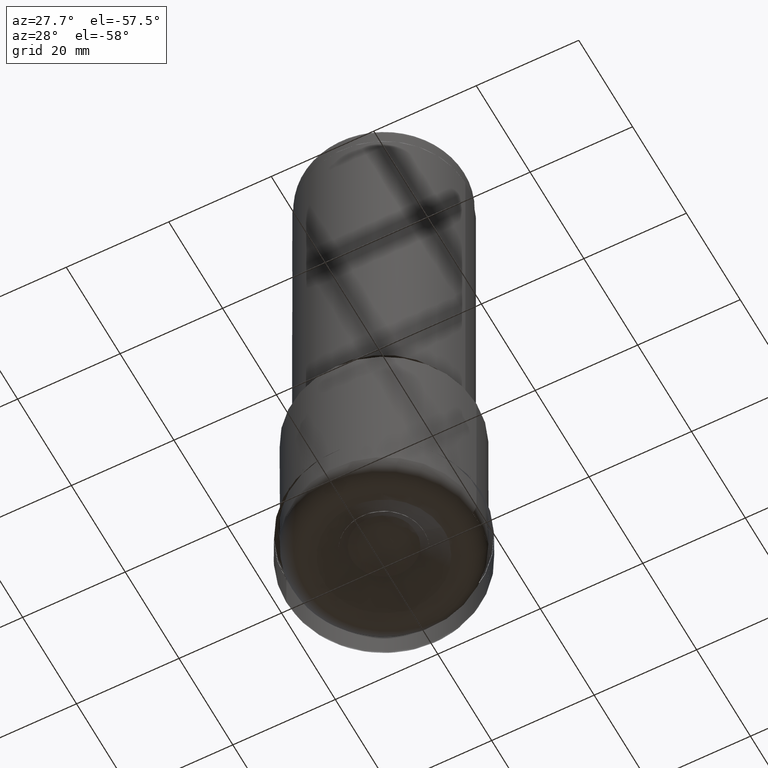
[diagram: clean part render]
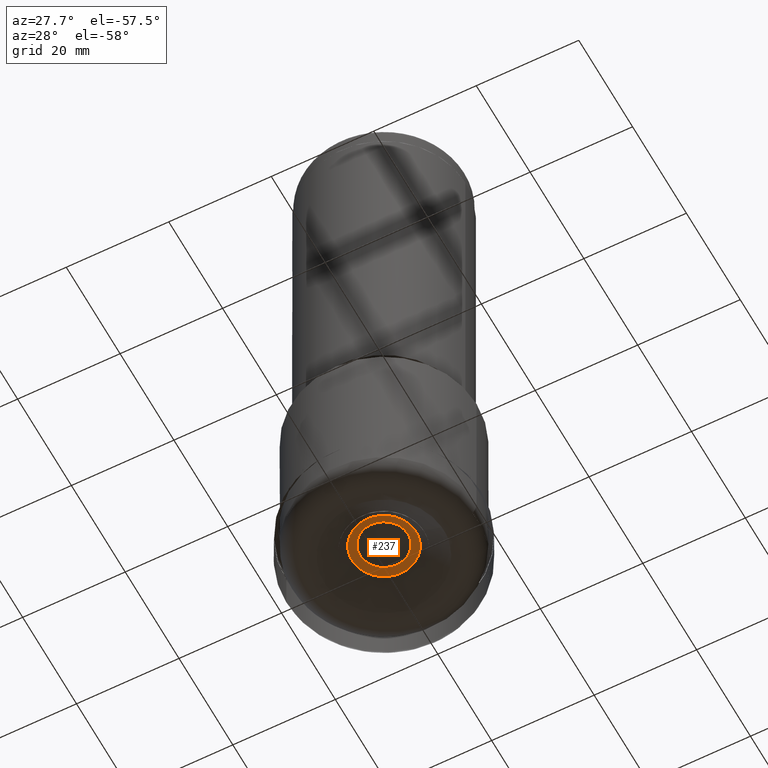
[diagram: same view with one face highlighted and labeled with its STEP entity id]
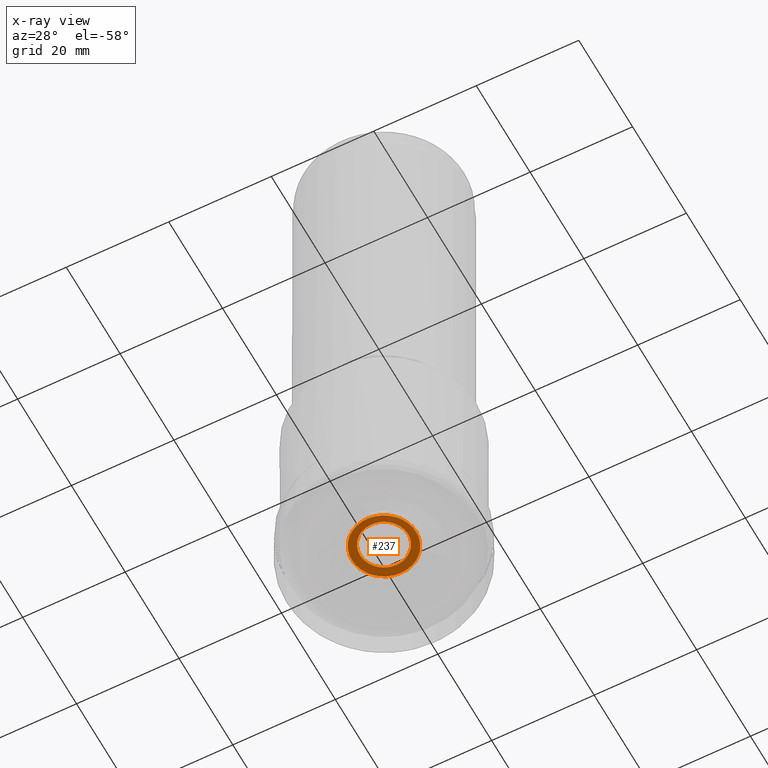
[diagram: x-ray of the same camera — body ghosted, the highlighted face saturated]
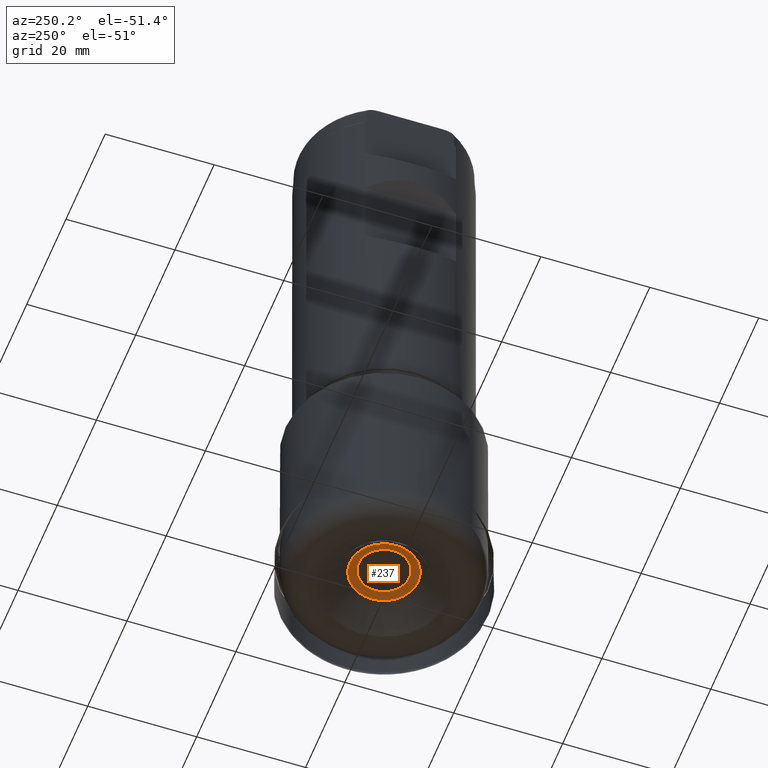
[diagram: same view with one face highlighted and labeled with its STEP entity id]
A machine part, auxiliary view. The second image highlights one B-rep face of the part: STEP entity #237.
The next image is the same camera in x-ray: the body ghosted, the highlighted face saturated — about 0% of this face is hidden behind the body in this view.
A second angle (auxiliary view) of the same face is appended — the face is thin or edge-on in the first view.
In plain terms, the highlighted face is a freeform B-spline surface patch.
Its self-contained STEP definition (entity closure, byte-faithful):
#190=(
BOUNDED_SURFACE()
B_SPLINE_SURFACE(3,2,((#1997,#1998,#1999),(#2000,#2001,#2002),(#2003,#2004,
#2005),(#2006,#2007,#2008),(#2009,#2010,#2011),(#2012,#2013,#2014),(#2015,
#2016,#2017),(#2018,#2019,#2020),(#2021,#2022,#2023),(#2024,#2025,#2026),
(#2027,#2028,#2029),(#2030,#2031,#2032),(#2033,#2034,#2035),(#2036,#2037,
#2038),(#2039,#2040,#2041),(#2042,#2043,#2044),(#2045,#2046,#2047),(#2048,
#2049,#2050)),.UNSPECIFIED.,.T.,.F.,.F.)
B_SPLINE_SURFACE_WITH_KNOTS((1,3,2,2,2,2,2,2,2,3,1),(3,3),(-0.125,0.,0.125,
0.25,0.375,0.5,0.625,0.75,0.875,1.,1.125),(0.,1.),.UNSPECIFIED.)
GEOMETRIC_REPRESENTATION_ITEM()
RATIONAL_B_SPLINE_SURFACE(((1.,0.962064049181783,1.),(1.,0.962064049181783,
1.),(1.,0.962064049181783,1.),(1.,0.962064049181783,1.),(1.,0.962064049181783,
1.),(1.,0.962064049181783,1.),(1.,0.962064049181783,1.),(1.,0.962064049181783,
1.),(1.,0.962064049181783,1.),(1.,0.962064049181783,1.),(1.,0.962064049181783,
1.),(1.,0.962064049181783,1.),(1.,0.962064049181783,1.),(1.,0.962064049181783,
1.),(1.,0.962064049181783,1.),(1.,0.962064049181783,1.),(1.,0.962064049181783,
1.),(1.,0.962064049181783,1.)))
REPRESENTATION_ITEM('')
SURFACE()
);
#237=ADVANCED_FACE('',(#348,#349),#190,.T.);
#348=FACE_BOUND('',#463,.T.);
#349=FACE_BOUND('',#464,.T.);
#463=EDGE_LOOP('',(#606));
#464=EDGE_LOOP('',(#607));
#606=ORIENTED_EDGE('',*,*,#836,.F.);
#607=ORIENTED_EDGE('',*,*,#837,.F.);
#758=VERTEX_POINT('',#1876);
#759=VERTEX_POINT('',#1995);
#836=EDGE_CURVE('',#758,#758,#989,.T.);
#837=EDGE_CURVE('',#759,#759,#990,.T.);
#989=B_SPLINE_CURVE_WITH_KNOTS('',3,(#1858,#1859,#1860,#1861,#1862,#1863,
#1864,#1865,#1866,#1867,#1868,#1869,#1870,#1871,#1872,#1873,#1874,#1875),
 .UNSPECIFIED.,.T.,.F.,(2,2,2,2,2,2,2,2,2,2,2),(-0.125,0.,0.125,0.25,0.375,
0.5,0.625,0.75,0.875,1.,1.125),.UNSPECIFIED.);
#990=B_SPLINE_CURVE_WITH_KNOTS('',3,(#1977,#1978,#1979,#1980,#1981,#1982,
#1983,#1984,#1985,#1986,#1987,#1988,#1989,#1990,#1991,#1992,#1993,#1994),
 .UNSPECIFIED.,.T.,.F.,(2,2,2,2,2,2,2,2,2,2,2),(-0.125,0.,0.125,0.25,0.375,
0.5,0.625,0.75,0.875,1.,1.125),.UNSPECIFIED.);
#1858=CARTESIAN_POINT('',(6.26832154063527,-1.65586656710068,5.05340340836828));
#1859=CARTESIAN_POINT('',(6.26832154063526,1.65586656710069,5.05340340836828));
#1860=CARTESIAN_POINT('',(5.59873045847782,3.26711460250116,5.05340340836828));
#1861=CARTESIAN_POINT('',(3.26183650932461,5.60180713332765,5.05340340836829));
#1862=CARTESIAN_POINT('',(1.63400611060939,6.26905368454266,5.05340340836829));
#1863=CARTESIAN_POINT('',(-1.63961854438075,6.26758814043404,5.05340340836829));
#1864=CARTESIAN_POINT('',(-3.27493088741594,5.58880644590887,5.0534034083683));
#1865=CARTESIAN_POINT('',(-5.58594859442233,3.27980305927883,5.0534034083683));
#1866=CARTESIAN_POINT('',(-6.26958751429967,1.63071198118855,5.0534034083683));
#1867=CARTESIAN_POINT('',(-6.26705180034243,-1.64043009509055,5.0534034083683));
#1868=CARTESIAN_POINT('',(-5.58831967513742,-3.27613733245477,5.0534034083683));
#1869=CARTESIAN_POINT('',(-3.2775312876105,-5.58750223904798,5.05340340836829));
#1870=CARTESIAN_POINT('',(-1.65563494574624,-6.2675760711871,5.05340340836829));
#1871=CARTESIAN_POINT('',(1.64998535315387,-6.26906573709919,5.05340340836829));
#1872=CARTESIAN_POINT('',(3.27245045890915,-5.59109826881322,5.05340340836829));
#1873=CARTESIAN_POINT('',(5.58771425256716,-3.27822532617858,5.05340340836828));
#1874=CARTESIAN_POINT('',(6.26832154063527,-1.65586656710068,5.05340340836828));
#1875=CARTESIAN_POINT('',(6.26832154063526,1.65586656710069,5.05340340836828));
#1876=CARTESIAN_POINT('',(6.26832154063526,2.60971308756266E-15,5.05340340836829));
#1977=CARTESIAN_POINT('',(4.69347836300354,1.23984927293956,5.49999999999999));
#1978=CARTESIAN_POINT('',(4.69347836300354,-1.23984927293956,5.49999999999999));
#1979=CARTESIAN_POINT('',(4.18386577220999,-2.45460918648249,5.5));
#1980=CARTESIAN_POINT('',(2.450285187721,-4.18639959357316,5.5));
#1981=CARTESIAN_POINT('',(1.23544564587151,-4.69403558872634,5.5));
#1982=CARTESIAN_POINT('',(-1.23967584376742,-4.69292018411903,5.5));
#1983=CARTESIAN_POINT('',(-2.4540895170652,-4.18370702463163,5.5));
#1984=CARTESIAN_POINT('',(-4.18431908937241,-2.4530457769954,5.50000000000001));
#1985=CARTESIAN_POINT('',(-4.69252763025117,-1.22829103571274,5.50000000000001));
#1986=CARTESIAN_POINT('',(-4.69442627544923,1.22101448535829,5.5));
#1987=CARTESIAN_POINT('',(-4.18254371522144,2.45579053241705,5.50000000000001));
#1988=CARTESIAN_POINT('',(-2.45214243729764,4.18468356462607,5.5));
#1989=CARTESIAN_POINT('',(-1.22768337771813,4.69292922110749,5.5));
#1990=CARTESIAN_POINT('',(1.22348100291988,4.69402656423503,5.5));
#1991=CARTESIAN_POINT('',(2.4423378700223,4.19441797992508,5.5));
#1992=CARTESIAN_POINT('',(4.19211428399243,2.44628990342733,5.5));
#1993=CARTESIAN_POINT('',(4.69347836300354,1.23984927293956,5.49999999999999));
#1994=CARTESIAN_POINT('',(4.69347836300354,-1.23984927293956,5.49999999999999));
#1995=CARTESIAN_POINT('',(4.69347836300354,1.47300197920138E-15,5.49999999999999));
#1997=CARTESIAN_POINT('',(6.12990235166013,-1.31001988378178,5.05340340836828));
#1998=CARTESIAN_POINT('',(5.42179383962357,-1.15869019247082,5.49999999999999));
#1999=CARTESIAN_POINT('',(4.589835391872,-0.980892562670142,5.49999999999999));
#2000=CARTESIAN_POINT('',(5.78372345109096,-2.92987534014403,5.05340340836898));
#2001=CARTESIAN_POINT('',(5.11560451998574,-2.59142465226364,5.49999999999945));
#2002=CARTESIAN_POINT('',(4.33062993008825,-2.19377809930775,5.49999999999999));
#2003=CARTESIAN_POINT('',(4.78057177313928,-4.37189798151812,5.0534034093313));
#2004=CARTESIAN_POINT('',(4.22833400938452,-3.86686902680133,5.50000000000212));
#2005=CARTESIAN_POINT('',(3.57950849091718,-3.27350925541396,5.5));
#2006=CARTESIAN_POINT('',(2.03482718499046,-6.15035257569122,5.05340340740527));
#2007=CARTESIAN_POINT('',(1.79976986012611,-5.43988171362488,5.49999999999787));
#2008=CARTESIAN_POINT('',(1.5236004255372,-4.60514773437392,5.5));
#2009=CARTESIAN_POINT('',(0.292479510740339,-6.47148333843116,5.05340340750342));
#2010=CARTESIAN_POINT('',(0.258693127226766,-5.72391638357064,5.49999999999894));
#2011=CARTESIAN_POINT('',(0.218997421536345,-4.84559811282933,5.5));
#2012=CARTESIAN_POINT('',(-2.90600917678278,-5.78971082983337,5.05340340923316));
#2013=CARTESIAN_POINT('',(-2.57031543866289,-5.12090025366686,5.50000000000106));
#2014=CARTESIAN_POINT('',(-2.17590803295257,-4.33511304888662,5.5));
#2015=CARTESIAN_POINT('',(-4.35860363255676,-4.79925912300604,5.05340340561229));
#2016=CARTESIAN_POINT('',(-3.85511040411447,-4.2448626519862,5.50000000000001));
#2017=CARTESIAN_POINT('',(-3.26355495907341,-3.59350086152937,5.5));
#2018=CARTESIAN_POINT('',(-6.15953510400257,-2.02248385556315,5.0534034111243));
#2019=CARTESIAN_POINT('',(-5.4480035012382,-1.78885239515236,5.50000000000001));
#2020=CARTESIAN_POINT('',(-4.61202325737325,-1.51435821371535,5.50000000000001));
#2021=CARTESIAN_POINT('',(-6.47417108356109,-0.300897427787487,5.05340340836842));
#2022=CARTESIAN_POINT('',(-5.72629364773022,-0.266138631049326,5.50000000000001));
#2023=CARTESIAN_POINT('',(-4.84761059273898,-0.225300434517937,5.50000000000001));
#2024=CARTESIAN_POINT('',(-5.78563361975916,2.92093719535105,5.05340340836817));
#2025=CARTESIAN_POINT('',(-5.11729403151691,2.58351901599098,5.50000000000001));
#2026=CARTESIAN_POINT('',(-4.33206019100499,2.18708555985823,5.50000000000001));
#2027=CARTESIAN_POINT('',(-4.79478207699638,4.36352821436547,5.05340341112441));
#2028=CARTESIAN_POINT('',(-4.24090277969162,3.85946611001711,5.5));
#2029=CARTESIAN_POINT('',(-3.59014862008544,3.26724229461162,5.5));
#2030=CARTESIAN_POINT('',(-2.01615945874496,6.16160813362933,5.05340340561217));
#2031=CARTESIAN_POINT('',(-1.78325857591591,5.44983706302636,5.5));
#2032=CARTESIAN_POINT('',(-1.5096227497228,4.61357546445459,5.5));
#2033=CARTESIAN_POINT('',(-0.285606868681133,6.471790289031,5.05340340923317));
#2034=CARTESIAN_POINT('',(-0.252614393009765,5.7241878752084,5.5));
#2035=CARTESIAN_POINT('',(-0.213851451351639,4.8458279448661,5.5));
#2036=CARTESIAN_POINT('',(2.91215599906762,5.78662149279597,5.05340340750341));
#2037=CARTESIAN_POINT('',(2.57575219809101,5.11816778878986,5.5));
#2038=CARTESIAN_POINT('',(2.18051053750716,4.3327998727748,5.5));
#2039=CARTESIAN_POINT('',(4.3710399351777,4.78135633091262,5.05340340740612));
#2040=CARTESIAN_POINT('',(3.86611010036375,4.22902793789481,5.49999999999893));
#2041=CARTESIAN_POINT('',(3.27286678402262,3.58009593812042,5.5));
#2042=CARTESIAN_POINT('',(6.14998727961321,2.03593096630446,5.05340340933044));
#2043=CARTESIAN_POINT('',(5.43955861460636,1.80074613525749,5.50000000000106));
#2044=CARTESIAN_POINT('',(4.60487421395881,1.52442689409926,5.49999999999999));
#2045=CARTESIAN_POINT('',(6.4760812522293,0.309835572580479,5.05340340836758));
#2046=CARTESIAN_POINT('',(5.72798315926141,0.274044267321999,5.50000000000053));
#2047=CARTESIAN_POINT('',(4.84904085365575,0.231992973967466,5.49999999999999));
#2048=CARTESIAN_POINT('',(6.12990235166013,-1.31001988378178,5.05340340836828));
#2049=CARTESIAN_POINT('',(5.42179383962357,-1.15869019247082,5.49999999999999));
#2050=CARTESIAN_POINT('',(4.589835391872,-0.980892562670142,5.49999999999999));